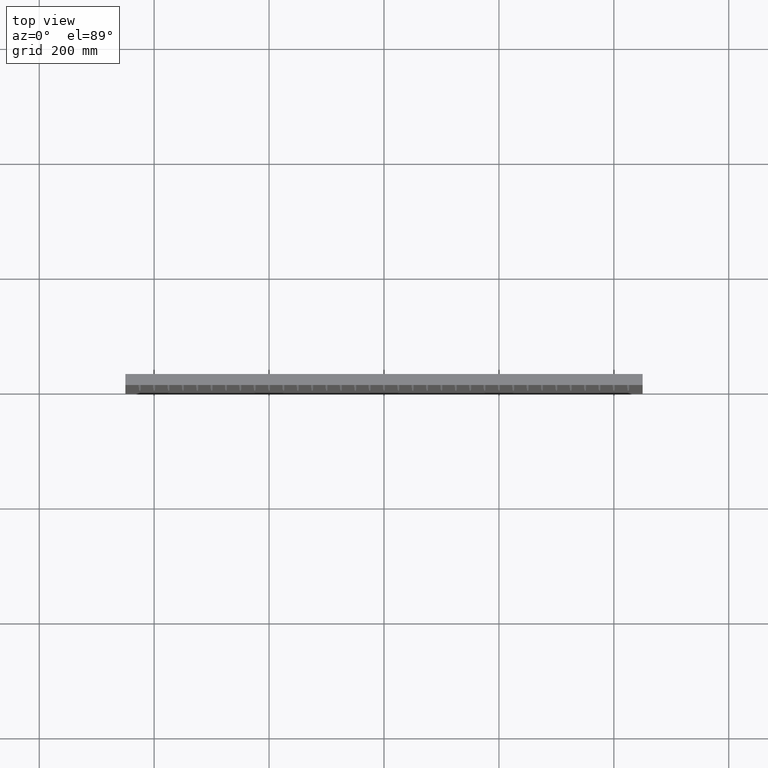
[diagram: clean part render]
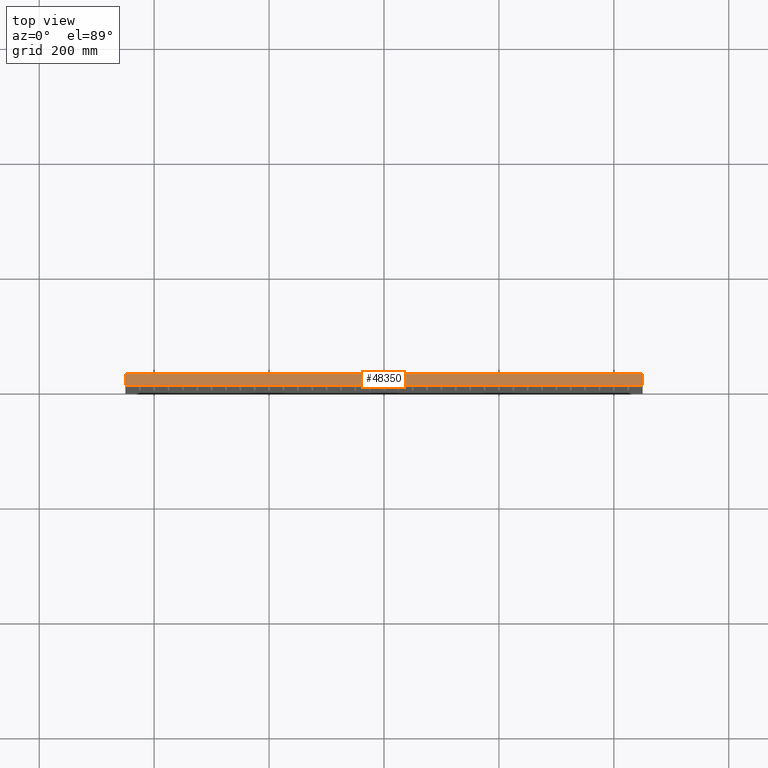
[diagram: same view with one face highlighted and labeled with its STEP entity id]
A machine part, top view. The second image highlights one B-rep face of the part: STEP entity #48350.
In plain terms, the highlighted planar face has unit normal (0, 0, -1).
Its self-contained STEP definition (entity closure, byte-faithful):
#164 = DIRECTION ( 'NONE',  ( -0.000000000000000000, -1.000000000000000000, -0.000000000000000000 ) ) ;
#2251 = CARTESIAN_POINT ( 'NONE',  ( -449.9999999999998863, 19.00000000000000000, 450.0000000000000000 ) ) ;
#3816 = DIRECTION ( 'NONE',  ( 1.000000000000000000, 0.000000000000000000, 0.000000000000000000 ) ) ;
#4220 = ORIENTED_EDGE ( 'NONE', *, *, #33979, .F. ) ;
#9441 = VECTOR ( 'NONE', #23220, 1000.000000000000000 ) ;
#12109 = LINE ( 'NONE', #40058, #77602 ) ;
#14949 = CARTESIAN_POINT ( 'NONE',  ( -449.9999999999998863, 19.00000000000000000, 450.0000000000000000 ) ) ;
#15301 = EDGE_LOOP ( 'NONE', ( #56953, #4220, #41117, #62647 ) ) ;
#15898 = VERTEX_POINT ( 'NONE', #31425 ) ;
#18723 = DIRECTION ( 'NONE',  ( -1.000000000000000000, 0.000000000000000000, -0.000000000000000000 ) ) ;
#21116 = DIRECTION ( 'NONE',  ( 1.000000000000000000, 0.000000000000000000, 0.000000000000000000 ) ) ;
#23220 = DIRECTION ( 'NONE',  ( -0.000000000000000000, -1.000000000000000000, -0.000000000000000000 ) ) ;
#28556 = EDGE_CURVE ( 'NONE', #72250, #36888, #50756, .T. ) ;
#31425 = CARTESIAN_POINT ( 'NONE',  ( 450.0000000000001137, 0.000000000000000000, 450.0000000000000000 ) ) ;
#33979 = EDGE_CURVE ( 'NONE', #78289, #15898, #84577, .T. ) ;
#35792 = LINE ( 'NONE', #2251, #65692 ) ;
#36888 = VERTEX_POINT ( 'NONE', #53311 ) ;
#39638 = VECTOR ( 'NONE', #164, 1000.000000000000000 ) ;
#39829 = DIRECTION ( 'NONE',  ( 0.000000000000000000, 0.000000000000000000, -1.000000000000000000 ) ) ;
#40058 = CARTESIAN_POINT ( 'NONE',  ( -449.9999999999998863, 0.000000000000000000, 450.0000000000000000 ) ) ;
#41117 = ORIENTED_EDGE ( 'NONE', *, *, #48039, .F. ) ;
#47639 = FACE_OUTER_BOUND ( 'NONE', #15301, .T. ) ;
#48039 = EDGE_CURVE ( 'NONE', #72250, #78289, #35792, .T. ) ;
#48350 = ADVANCED_FACE ( 'NONE', ( #47639 ), #61883, .F. ) ;
#48676 = EDGE_CURVE ( 'NONE', #36888, #15898, #12109, .T. ) ;
#49220 = CARTESIAN_POINT ( 'NONE',  ( 450.0000000000001137, 19.00000000000000000, 450.0000000000000000 ) ) ;
#50756 = LINE ( 'NONE', #58094, #9441 ) ;
#53311 = CARTESIAN_POINT ( 'NONE',  ( -449.9999999999998863, 0.000000000000000000, 450.0000000000000000 ) ) ;
#56953 = ORIENTED_EDGE ( 'NONE', *, *, #48676, .T. ) ;
#58094 = CARTESIAN_POINT ( 'NONE',  ( -449.9999999999998863, 19.00000000000000000, 450.0000000000000000 ) ) ;
#60245 = CARTESIAN_POINT ( 'NONE',  ( -449.9999999999998863, 19.00000000000000000, 450.0000000000000000 ) ) ;
#61883 = PLANE ( 'NONE',  #86306 ) ;
#62647 = ORIENTED_EDGE ( 'NONE', *, *, #28556, .T. ) ;
#65692 = VECTOR ( 'NONE', #21116, 1000.000000000000000 ) ;
#72250 = VERTEX_POINT ( 'NONE', #60245 ) ;
#77602 = VECTOR ( 'NONE', #3816, 1000.000000000000000 ) ;
#78289 = VERTEX_POINT ( 'NONE', #84237 ) ;
#84237 = CARTESIAN_POINT ( 'NONE',  ( 450.0000000000001137, 19.00000000000000000, 450.0000000000000000 ) ) ;
#84577 = LINE ( 'NONE', #49220, #39638 ) ;
#86306 = AXIS2_PLACEMENT_3D ( 'NONE', #14949, #39829, #18723 ) ;